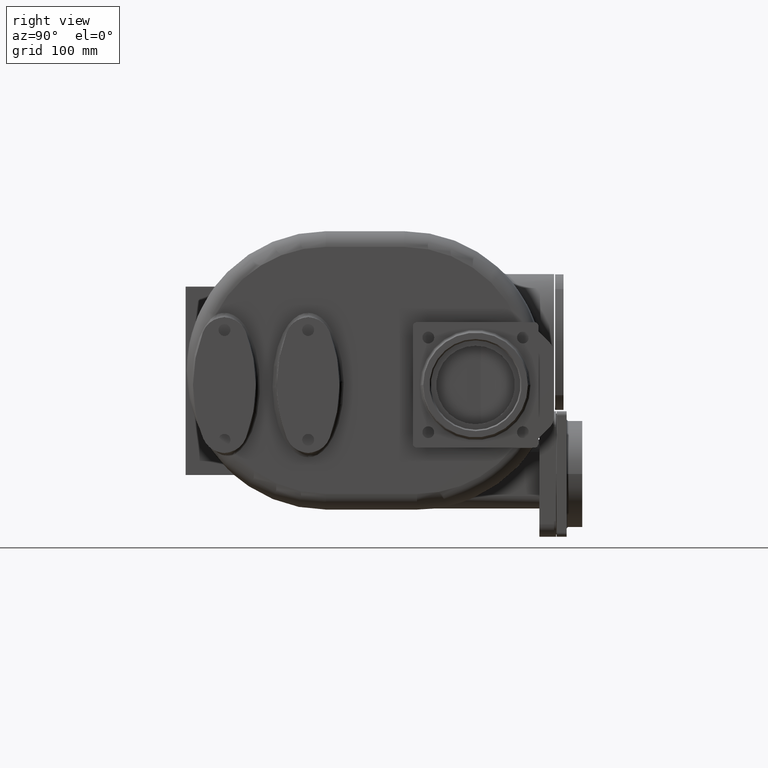
[diagram: clean part render]
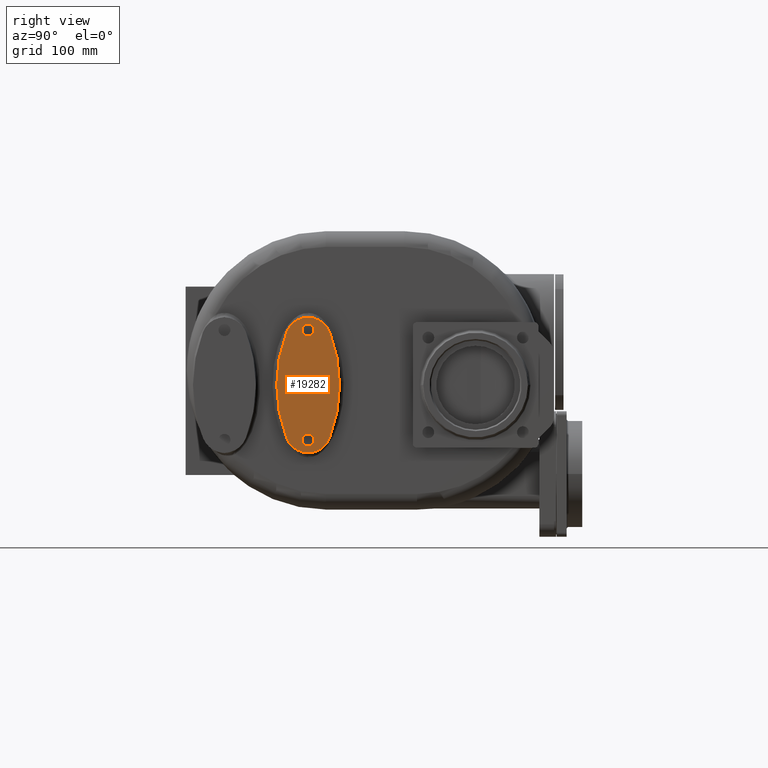
[diagram: same view with one face highlighted and labeled with its STEP entity id]
A machine part, right view. The second image highlights one B-rep face of the part: STEP entity #19282.
In plain terms, the highlighted planar face has unit normal (1, 0, 0).
Its self-contained STEP definition (entity closure, byte-faithful):
#5204=CARTESIAN_POINT('',(1.29E2,2.27E2,-1.399E1));
#5205=DIRECTION('',(1.E0,0.E0,0.E0));
#5206=DIRECTION('',(0.E0,-9.322095515959E-1,3.619189852900E-1));
#5207=AXIS2_PLACEMENT_3D('',#5204,#5205,#5206);
#5209=CARTESIAN_POINT('',(1.29E2,1.17E2,2.870528552457E1));
#5210=DIRECTION('',(1.E0,0.E0,0.E0));
#5211=DIRECTION('',(0.E0,9.320427750791E-1,3.623482653786E-1));
#5212=AXIS2_PLACEMENT_3D('',#5209,#5210,#5211);
#5214=CARTESIAN_POINT('',(1.29E2,7.E0,-1.399E1));
#5215=DIRECTION('',(1.E0,0.E0,0.E0));
#5216=DIRECTION('',(0.E0,9.322496398259E-1,-3.618157114394E-1));
#5217=AXIS2_PLACEMENT_3D('',#5214,#5215,#5216);
#5219=CARTESIAN_POINT('',(1.29E2,1.17E2,-5.668528552457E1));
#5220=DIRECTION('',(1.E0,0.E0,0.E0));
#5221=DIRECTION('',(0.E0,-9.322979185720E-1,-3.616912924391E-1));
#5222=AXIS2_PLACEMENT_3D('',#5219,#5220,#5221);
#5224=CARTESIAN_POINT('',(1.29E2,1.17E2,-6.649E1));
#5225=DIRECTION('',(1.E0,0.E0,0.E0));
#5226=DIRECTION('',(0.E0,0.E0,-1.E0));
#5227=AXIS2_PLACEMENT_3D('',#5224,#5225,#5226);
#5229=CARTESIAN_POINT('',(1.29E2,1.17E2,-6.649E1));
#5230=DIRECTION('',(1.E0,0.E0,0.E0));
#5231=DIRECTION('',(0.E0,0.E0,1.E0));
#5232=AXIS2_PLACEMENT_3D('',#5229,#5230,#5231);
#5234=CARTESIAN_POINT('',(1.29E2,1.17E2,3.851E1));
#5235=DIRECTION('',(-1.E0,0.E0,0.E0));
#5236=DIRECTION('',(0.E0,0.E0,1.E0));
#5237=AXIS2_PLACEMENT_3D('',#5234,#5235,#5236);
#5239=CARTESIAN_POINT('',(1.29E2,1.17E2,3.851E1));
#5240=DIRECTION('',(-1.E0,0.E0,0.E0));
#5241=DIRECTION('',(0.E0,0.E0,-1.E0));
#5242=AXIS2_PLACEMENT_3D('',#5239,#5240,#5241);
#10948=CARTESIAN_POINT('',(1.29E2,9.649066277657E1,3.667865794060E1));
#10949=CARTESIAN_POINT('',(1.29E2,9.648505042437E1,-6.464419960152E1));
#10950=VERTEX_POINT('',#10948);
#10951=VERTEX_POINT('',#10949);
#10952=CARTESIAN_POINT('',(1.29E2,1.375149495042E2,-6.464419914294E1));
#10953=VERTEX_POINT('',#10952);
#10954=CARTESIAN_POINT('',(1.29E2,1.375093372234E2,3.667865794060E1));
#10955=VERTEX_POINT('',#10954);
#10956=CARTESIAN_POINT('',(1.29E2,1.17E2,-7.224E1));
#10957=CARTESIAN_POINT('',(1.29E2,1.17E2,-6.074E1));
#10958=VERTEX_POINT('',#10956);
#10959=VERTEX_POINT('',#10957);
#10960=CARTESIAN_POINT('',(1.29E2,1.17E2,4.426E1));
#10961=CARTESIAN_POINT('',(1.29E2,1.17E2,3.276E1));
#10962=VERTEX_POINT('',#10960);
#10963=VERTEX_POINT('',#10961);
#19259=CARTESIAN_POINT('',(1.29E2,1.17E2,-1.399E1));
#19260=DIRECTION('',(1.E0,0.E0,0.E0));
#19261=DIRECTION('',(0.E0,0.E0,1.E0));
#19262=AXIS2_PLACEMENT_3D('',#19259,#19260,#19261);
#19263=PLANE('',#19262);
#19264=ORIENTED_EDGE('',*,*,#19191,.F.);
#19265=ORIENTED_EDGE('',*,*,#19210,.F.);
#19266=ORIENTED_EDGE('',*,*,#19229,.F.);
#19267=ORIENTED_EDGE('',*,*,#19247,.F.);
#19268=EDGE_LOOP('',(#19264,#19265,#19266,#19267));
#19269=FACE_OUTER_BOUND('',#19268,.F.);
#19271=ORIENTED_EDGE('',*,*,#19270,.T.);
#19273=ORIENTED_EDGE('',*,*,#19272,.T.);
#19274=EDGE_LOOP('',(#19271,#19273));
#19275=FACE_BOUND('',#19274,.F.);
#19277=ORIENTED_EDGE('',*,*,#19276,.F.);
#19279=ORIENTED_EDGE('',*,*,#19278,.F.);
#19280=EDGE_LOOP('',(#19277,#19279));
#19281=FACE_BOUND('',#19280,.F.);
#19282=ADVANCED_FACE('',(#19269,#19275,#19281),#19263,.T.);
#5208=CIRCLE('',#5207,1.4E2);
#5213=CIRCLE('',#5212,2.200471447543E1);
#5218=CIRCLE('',#5217,1.4E2);
#5223=CIRCLE('',#5222,2.200471447543E1);
#5228=CIRCLE('',#5227,5.75E0);
#5233=CIRCLE('',#5232,5.75E0);
#5238=CIRCLE('',#5237,5.75E0);
#5243=CIRCLE('',#5242,5.75E0);
#19191=EDGE_CURVE('',#10950,#10951,#5208,.T.);
#19210=EDGE_CURVE('',#10955,#10950,#5213,.T.);
#19229=EDGE_CURVE('',#10953,#10955,#5218,.T.);
#19247=EDGE_CURVE('',#10951,#10953,#5223,.T.);
#19270=EDGE_CURVE('',#10958,#10959,#5228,.T.);
#19272=EDGE_CURVE('',#10959,#10958,#5233,.T.);
#19276=EDGE_CURVE('',#10962,#10963,#5238,.T.);
#19278=EDGE_CURVE('',#10963,#10962,#5243,.T.);